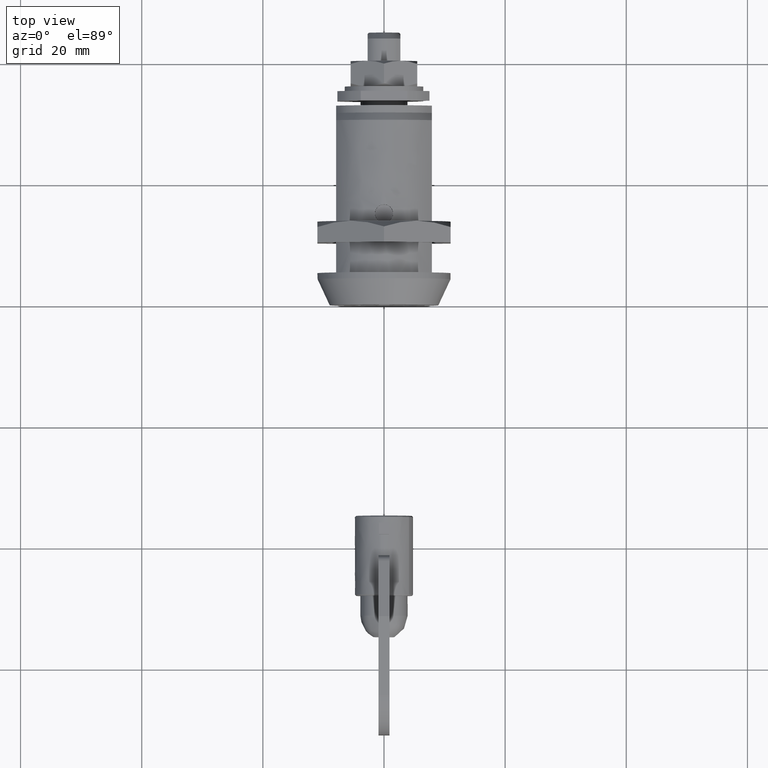
[diagram: clean part render]
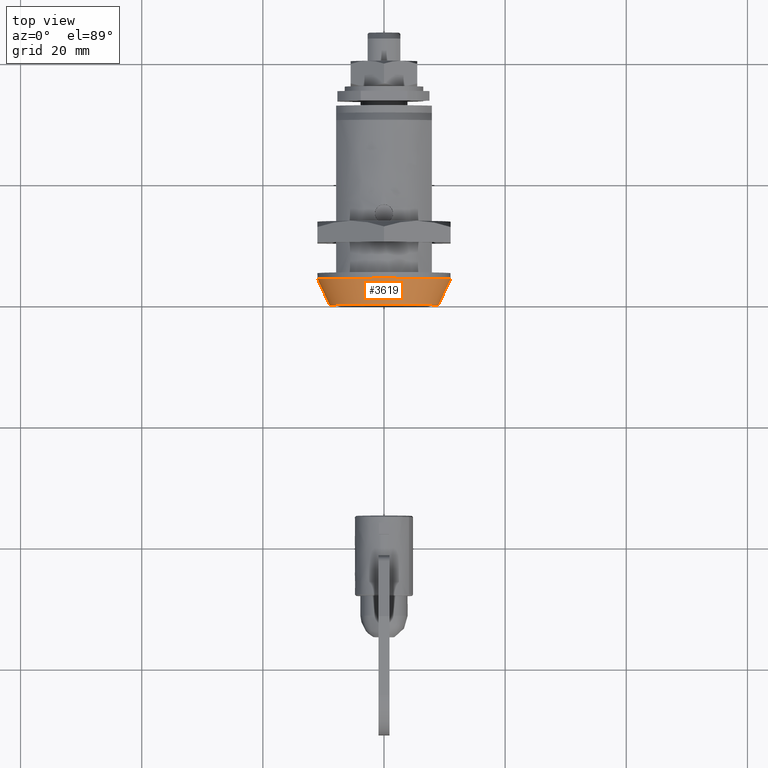
[diagram: same view with one face highlighted and labeled with its STEP entity id]
A machine part, top view. The second image highlights one B-rep face of the part: STEP entity #3619.
In plain terms, the highlighted face is a freeform B-spline surface patch.
Its self-contained STEP definition (entity closure, byte-faithful):
#3424=CARTESIAN_POINT('',(4.300003000000000,-10.979489769565610,-0.671534362529202));
#3425=VERTEX_POINT('',#3424);
#3469=CARTESIAN_POINT('',(4.300003000022265,10.966097649486841,0.863050602340909));
#3470=VERTEX_POINT('',#3469);
#3486=CARTESIAN_POINT('',(4.300003000000000,0.0,11.000007000000201));
#3487=VERTEX_POINT('',#3486);
#3488=CARTESIAN_POINT('',(4.300003000000000,0.0,11.000007000000201));
#3489=CARTESIAN_POINT('',(4.300003000000001,10.168301878750475,11.000007000000201));
#3490=CARTESIAN_POINT('',(4.300003000022265,10.966097649486843,0.863050602340909));
#3498=(BOUNDED_CURVE()B_SPLINE_CURVE(2,(#3488,#3489,#3490),.UNSPECIFIED.,.F.,.U.)B_SPLINE_CURVE_WITH_KNOTS((3,3),(0.0,0.236331300629012),.UNSPECIFIED.)CURVE()GEOMETRIC_REPRESENTATION_ITEM()RATIONAL_B_SPLINE_CURVE((1.0,0.723120658609596,0.969723356163979))REPRESENTATION_ITEM(''));
#3499=EDGE_CURVE('',#3487,#3470,#3498,.T.);
#3501=CARTESIAN_POINT('',(4.300003000000001,-10.979489769565609,-0.671534362529202));
#3502=CARTESIAN_POINT('',(4.300003000000001,-11.000007000000199,-0.336080610307249));
#3503=CARTESIAN_POINT('',(4.300003000000000,-11.000007000000201,0.0));
#3504=CARTESIAN_POINT('',(4.300002999999999,-11.000007000000201,11.000007000000201));
#3505=CARTESIAN_POINT('',(4.300003000000000,0.0,11.000007000000201));
#3513=(BOUNDED_CURVE()B_SPLINE_CURVE(2,(#3501,#3502,#3503,#3504,#3505),.UNSPECIFIED.,.F.,.U.)B_SPLINE_CURVE_WITH_KNOTS((3,2,3),(0.739332962237160,0.750000000000000,1.0),.UNSPECIFIED.)CURVE()GEOMETRIC_REPRESENTATION_ITEM()RATIONAL_B_SPLINE_CURVE((0.976072041662896,0.987502787897748,1.0,0.707106781186548,1.0))REPRESENTATION_ITEM(''));
#3514=EDGE_CURVE('',#3425,#3487,#3513,.T.);
#3553=CARTESIAN_POINT('',(-0.107491874999977,8.917201642609880,0.701798989372694));
#3554=CARTESIAN_POINT('',(-0.107491874999977,8.215402653237186,9.619000631982575));
#3555=CARTESIAN_POINT('',(-0.107491874999977,-0.701798989372694,8.917201642609880));
#3556=CARTESIAN_POINT('',(-0.107491874999977,-9.619000631982575,8.215402653237186));
#3557=CARTESIAN_POINT('',(-0.107491874999977,-8.917201642609880,-0.701798989372694));
#3558=CARTESIAN_POINT('',(4.410190371875000,11.017320049657849,0.867081892541170));
#3559=CARTESIAN_POINT('',(4.410190371875001,10.150238157116680,11.884401942199020));
#3560=CARTESIAN_POINT('',(4.410190371875000,-0.867081892541170,11.017320049657849));
#3561=CARTESIAN_POINT('',(4.410190371875001,-11.884401942199020,10.150238157116680));
#3562=CARTESIAN_POINT('',(4.410190371875000,-11.017320049657849,-0.867081892541170));
#3570=(BOUNDED_SURFACE()B_SPLINE_SURFACE(2,1,((#3553,#3558),(#3554,#3559),(#3555,#3560),(#3556,#3561),(#3557,#3562)),.UNSPECIFIED.,.F.,.F.,.U.)B_SPLINE_SURFACE_WITH_KNOTS((3,2,3),(2,2),(0.0,18.310538822650049,36.621077645300090),(0.0,4.984703466148298),.UNSPECIFIED.)GEOMETRIC_REPRESENTATION_ITEM()RATIONAL_B_SPLINE_SURFACE(((1.0,1.0),(0.707106781186548,0.707106781186548),(1.0,1.0),(0.707106781186548,0.707106781186548),(1.0,1.0)))REPRESENTATION_ITEM('')SURFACE());
#3571=ORIENTED_EDGE('',*,*,#3499,.T.);
#3572=CARTESIAN_POINT('',(0.000008000004097,8.967174715948481,0.705731955561907));
#3573=VERTEX_POINT('',#3572);
#3574=CARTESIAN_POINT('',(0.000008000004097,8.967174715948481,0.705731955561907));
#3575=CARTESIAN_POINT('',(4.300003000022265,10.966097649486841,0.863050602340909));
#3576=QUASI_UNIFORM_CURVE('',1,(#3574,#3575),.UNSPECIFIED.,.F.,.U.);
#3577=EDGE_CURVE('',#3573,#3470,#3576,.T.);
#3578=ORIENTED_EDGE('',*,*,#3577,.F.);
#3579=CARTESIAN_POINT('',(0.000008000000022,0.0,8.994903000000210));
#3580=VERTEX_POINT('',#3579);
#3581=CARTESIAN_POINT('',(0.000008000000022,0.0,8.994903000000210));
#3582=CARTESIAN_POINT('',(0.000008000000022,8.314802806547039,8.994903000000210));
#3583=CARTESIAN_POINT('',(0.000008000004097,8.967174715948481,0.705731955561907));
#3591=(BOUNDED_CURVE()B_SPLINE_CURVE(2,(#3581,#3582,#3583),.UNSPECIFIED.,.F.,.U.)B_SPLINE_CURVE_WITH_KNOTS((3,3),(0.0,0.236331300631924),.UNSPECIFIED.)CURVE()GEOMETRIC_REPRESENTATION_ITEM()RATIONAL_B_SPLINE_CURVE((1.0,0.723120658606185,0.969723356170055))REPRESENTATION_ITEM(''));
#3592=EDGE_CURVE('',#3580,#3573,#3591,.T.);
#3593=ORIENTED_EDGE('',*,*,#3592,.F.);
#3594=CARTESIAN_POINT('',(0.000008000004098,-8.967174715948481,-0.705731955561906));
#3595=VERTEX_POINT('',#3594);
#3596=CARTESIAN_POINT('',(0.000008000004098,-8.967174715948481,-0.705731955561906));
#3597=CARTESIAN_POINT('',(0.000008000000022,-8.994903000000210,-0.353410701415777));
#3598=CARTESIAN_POINT('',(0.000008000000022,-8.994903000000210,0.0));
#3599=CARTESIAN_POINT('',(0.000008000000022,-8.994903000000210,8.994903000000210));
#3600=CARTESIAN_POINT('',(0.000008000000022,0.0,8.994903000000210));
#3608=(BOUNDED_CURVE()B_SPLINE_CURVE(2,(#3596,#3597,#3598,#3599,#3600),.UNSPECIFIED.,.F.,.U.)B_SPLINE_CURVE_WITH_KNOTS((3,2,3),(0.736331300631924,0.750000000000000,1.0),.UNSPECIFIED.)CURVE()GEOMETRIC_REPRESENTATION_ITEM()RATIONAL_B_SPLINE_CURVE((0.969723356170055,0.983986122580363,1.0,0.707106781186547,1.0))REPRESENTATION_ITEM(''));
#3609=EDGE_CURVE('',#3595,#3580,#3608,.T.);
#3610=ORIENTED_EDGE('',*,*,#3609,.F.);
#3611=CARTESIAN_POINT('',(0.000008000004098,-8.967174715948481,-0.705731955561906));
#3612=CARTESIAN_POINT('',(4.300003000000000,-10.979489769565610,-0.671534362529202));
#3613=QUASI_UNIFORM_CURVE('',1,(#3611,#3612),.UNSPECIFIED.,.F.,.U.);
#3614=EDGE_CURVE('',#3595,#3425,#3613,.T.);
#3615=ORIENTED_EDGE('',*,*,#3614,.T.);
#3616=ORIENTED_EDGE('',*,*,#3514,.T.);
#3617=EDGE_LOOP('',(#3571,#3578,#3593,#3610,#3615,#3616));
#3618=FACE_OUTER_BOUND('',#3617,.T.);
#3619=ADVANCED_FACE('',(#3618),#3570,.T.);